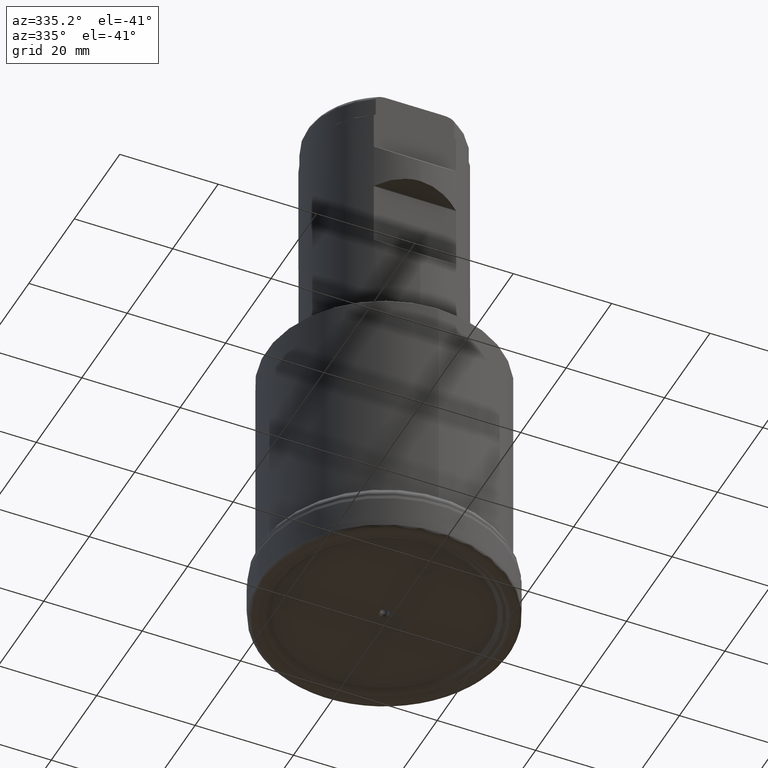
[diagram: clean part render]
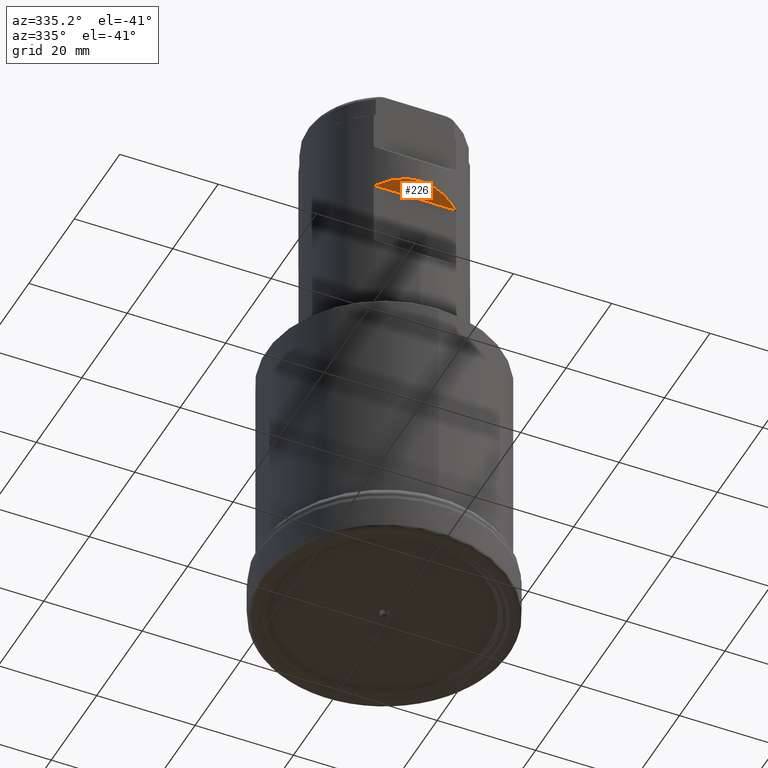
[diagram: same view with one face highlighted and labeled with its STEP entity id]
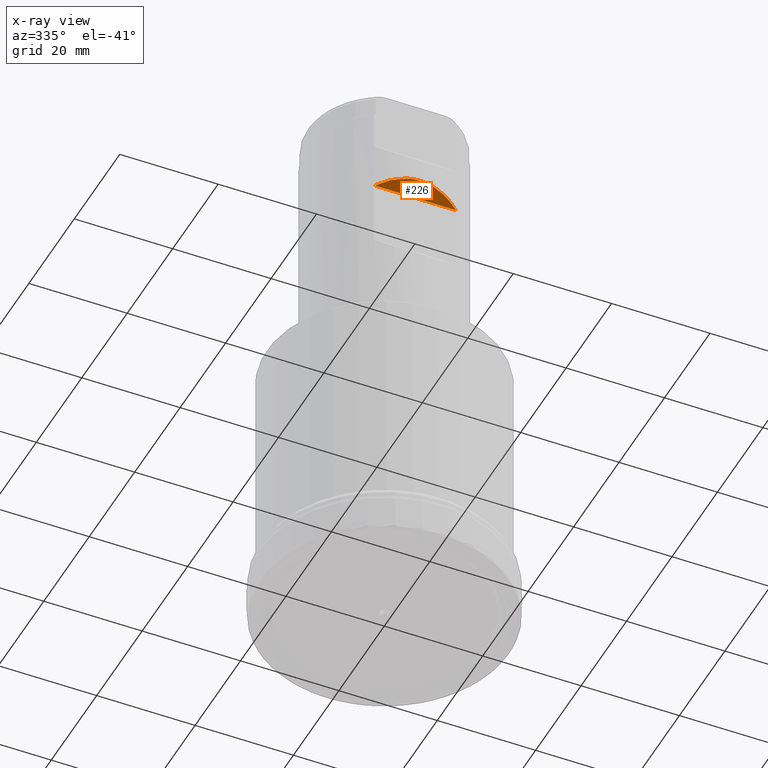
[diagram: x-ray of the same camera — body ghosted, the highlighted face saturated]
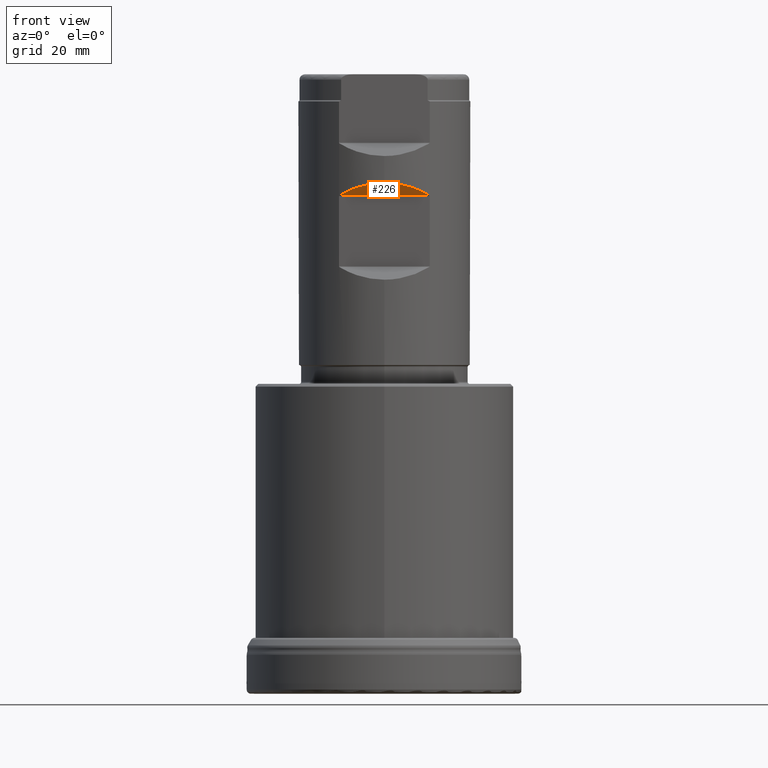
[diagram: same view with one face highlighted and labeled with its STEP entity id]
A machine part, auxiliary view. The second image highlights one B-rep face of the part: STEP entity #226.
The next image is the same camera in x-ray: the body ghosted, the highlighted face saturated — about 0% of this face is hidden behind the body in this view.
A second angle (front view) of the same face is appended — the face is thin or edge-on in the first view.
In plain terms, the highlighted planar face has unit normal (-0, -0.7071, -0.7071).
Its self-contained STEP definition (entity closure, byte-faithful):
#186=PLANE('',#1219);
#195=FACE_OUTER_BOUND('',#530,.T.);
#226=ADVANCED_FACE('',(#195),#186,.T.);
#530=EDGE_LOOP('',(#764,#765));
#627=LINE('',#2656,#640);
#640=VECTOR('',#1410,1.);
#644=ELLIPSE('',#1159,22.4506403026729,15.875);
#764=ORIENTED_EDGE('',*,*,#1041,.T.);
#765=ORIENTED_EDGE('',*,*,#969,.F.);
#873=VERTEX_POINT('',#1799);
#875=VERTEX_POINT('',#1802);
#969=EDGE_CURVE('',#873,#875,#644,.T.);
#1041=EDGE_CURVE('',#873,#875,#627,.T.);
#1159=AXIS2_PLACEMENT_3D('',#1801,#1281,#1282);
#1219=AXIS2_PLACEMENT_3D('',#2657,#1411,#1412);
#1281=DIRECTION('',(4.32978028117746E-17,0.707106781186548,0.707106781186547));
#1282=DIRECTION('',(-4.32978028117746E-17,-0.707106781186547,0.707106781186548));
#1410=DIRECTION('',(1.,-7.17309531289991E-32,-6.12323399573676E-17));
#1411=DIRECTION('',(-4.32978028117746E-17,-0.707106781186548,-0.707106781186547));
#1412=DIRECTION('',(4.16333634234434E-17,-0.707106781186547,0.707106781186548));
#1799=CARTESIAN_POINT('',(-8.22968557485392,-13.5752679656439,91.9691929656441));
#1801=CARTESIAN_POINT('',(0.,9.18349839919301E-14,78.393925));
#1802=CARTESIAN_POINT('',(8.22968557485392,-13.5752679656439,91.9691929656441));
#2656=CARTESIAN_POINT('',(-17.5,-13.5752679656439,91.9691929656441));
#2657=CARTESIAN_POINT('',(-17.5,-16.3873999999999,94.781325));